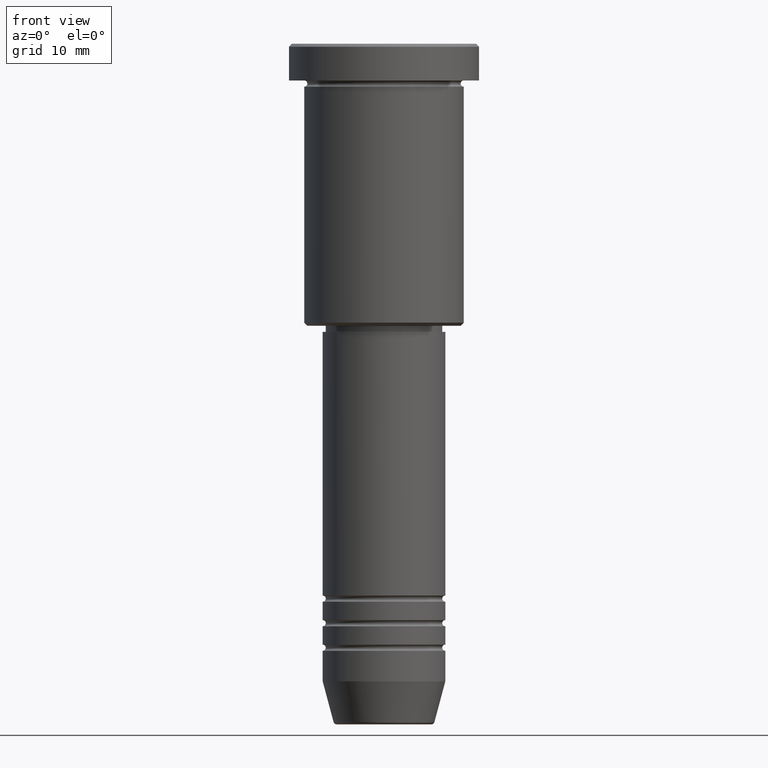
[diagram: clean part render]
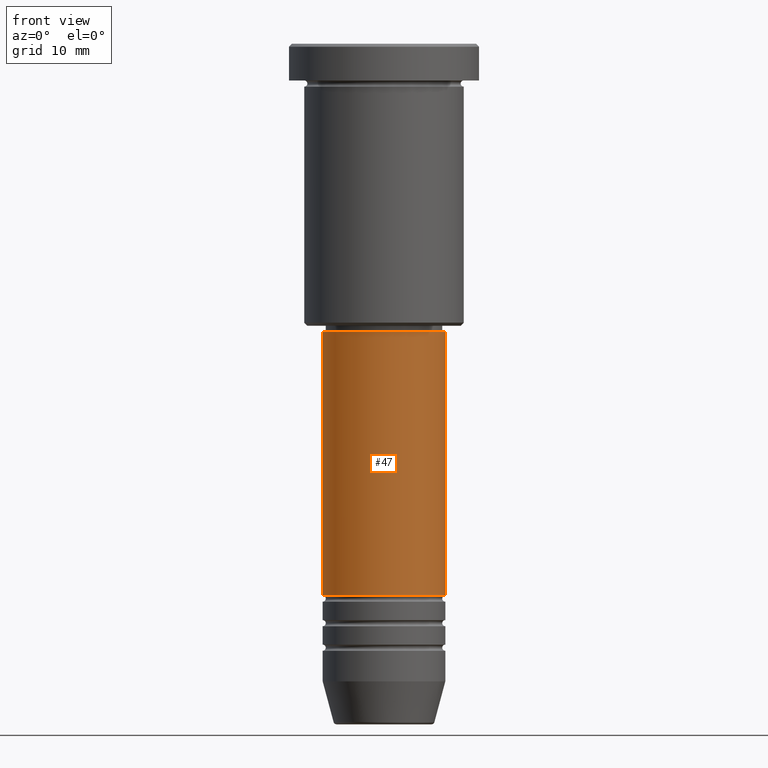
[diagram: same view with one face highlighted and labeled with its STEP entity id]
A machine part, front view. The second image highlights one B-rep face of the part: STEP entity #47.
In plain terms, the highlighted cylindrical surface (partial cylindrical patch) has radius 10 mm, axis along (-0, -0, 1).
Its self-contained STEP definition (entity closure, byte-faithful):
#1 = AXIS2_PLACEMENT_3D ( 'NONE', #540, #894, #70 ) ;
#8 = AXIS2_PLACEMENT_3D ( 'NONE', #401, #869, #790 ) ;
#46 = LINE ( 'NONE', #946, #995 ) ;
#47 = ADVANCED_FACE ( 'NONE', ( #449 ), #986, .T. ) ;
#70 = DIRECTION ( 'NONE',  ( 1.000000000000000000, 0.000000000000000000, 0.000000000000000000 ) ) ;
#115 = ORIENTED_EDGE ( 'NONE', *, *, #136, .F. ) ;
#128 = DIRECTION ( 'NONE',  ( 1.000000000000000000, 0.000000000000000000, 0.000000000000000000 ) ) ;
#136 = EDGE_CURVE ( 'NONE', #786, #461, #533, .T. ) ;
#139 = CARTESIAN_POINT ( 'NONE',  ( 0.000000000000000000, 0.000000000000000000, -46.99999999999999289 ) ) ;
#185 = DIRECTION ( 'NONE',  ( -0.000000000000000000, -0.000000000000000000, 1.000000000000000000 ) ) ;
#309 = ORIENTED_EDGE ( 'NONE', *, *, #840, .T. ) ;
#401 = CARTESIAN_POINT ( 'NONE',  ( 0.000000000000000000, 0.000000000000000000, -89.99999999999990052 ) ) ;
#439 = CARTESIAN_POINT ( 'NONE',  ( 10.00000000000000178, 0.000000000000000000, -89.99999999999990052 ) ) ;
#449 = FACE_OUTER_BOUND ( 'NONE', #743, .T. ) ;
#461 = VERTEX_POINT ( 'NONE', #1010 ) ;
#468 = VECTOR ( 'NONE', #185, 1000.000000000000000 ) ;
#486 = ORIENTED_EDGE ( 'NONE', *, *, #680, .T. ) ;
#533 = CIRCLE ( 'NONE', #551, 9.999999999999998224 ) ;
#540 = CARTESIAN_POINT ( 'NONE',  ( 0.000000000000000000, 0.000000000000000000, 0.000000000000000000 ) ) ;
#551 = AXIS2_PLACEMENT_3D ( 'NONE', #139, #1055, #128 ) ;
#680 = EDGE_CURVE ( 'NONE', #839, #740, #866, .T. ) ;
#740 = VERTEX_POINT ( 'NONE', #439 ) ;
#743 = EDGE_LOOP ( 'NONE', ( #1097, #486, #309, #115 ) ) ;
#749 = CARTESIAN_POINT ( 'NONE',  ( -10.00000000000000178, 1.224646799147353454E-15, -89.99999999999990052 ) ) ;
#759 = DIRECTION ( 'NONE',  ( -0.000000000000000000, -0.000000000000000000, 1.000000000000000000 ) ) ;
#786 = VERTEX_POINT ( 'NONE', #1047 ) ;
#790 = DIRECTION ( 'NONE',  ( 1.000000000000000000, 0.000000000000000000, 0.000000000000000000 ) ) ;
#839 = VERTEX_POINT ( 'NONE', #749 ) ;
#840 = EDGE_CURVE ( 'NONE', #740, #461, #1113, .T. ) ;
#866 = CIRCLE ( 'NONE', #8, 10.00000000000000178 ) ;
#869 = DIRECTION ( 'NONE',  ( -0.000000000000000000, -0.000000000000000000, 1.000000000000000000 ) ) ;
#894 = DIRECTION ( 'NONE',  ( -0.000000000000000000, -0.000000000000000000, 1.000000000000000000 ) ) ;
#946 = CARTESIAN_POINT ( 'NONE',  ( -10.00000000000000000, 1.224646799147353256E-15, 0.000000000000000000 ) ) ;
#986 = CYLINDRICAL_SURFACE ( 'NONE', #1, 10.00000000000000000 ) ;
#995 = VECTOR ( 'NONE', #759, 1000.000000000000000 ) ;
#996 = EDGE_CURVE ( 'NONE', #839, #786, #46, .T. ) ;
#1004 = CARTESIAN_POINT ( 'NONE',  ( 10.00000000000000000, 0.000000000000000000, 0.000000000000000000 ) ) ;
#1010 = CARTESIAN_POINT ( 'NONE',  ( 9.999999999999998224, 0.000000000000000000, -46.99999999999999289 ) ) ;
#1047 = CARTESIAN_POINT ( 'NONE',  ( -9.999999999999998224, 1.224646799147353256E-15, -46.99999999999999289 ) ) ;
#1055 = DIRECTION ( 'NONE',  ( -0.000000000000000000, -0.000000000000000000, 1.000000000000000000 ) ) ;
#1097 = ORIENTED_EDGE ( 'NONE', *, *, #996, .F. ) ;
#1113 = LINE ( 'NONE', #1004, #468 ) ;